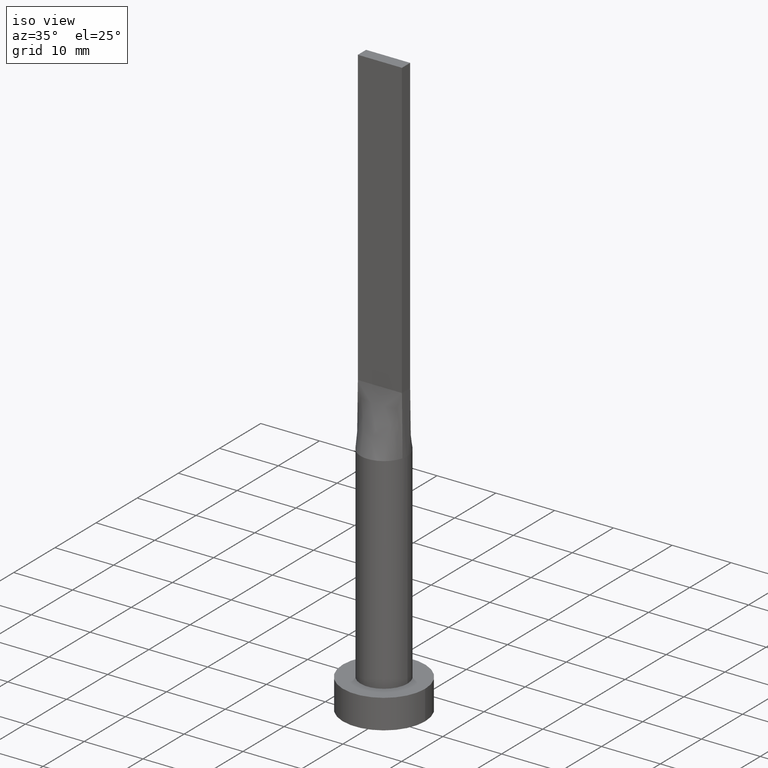
[diagram: clean part render]
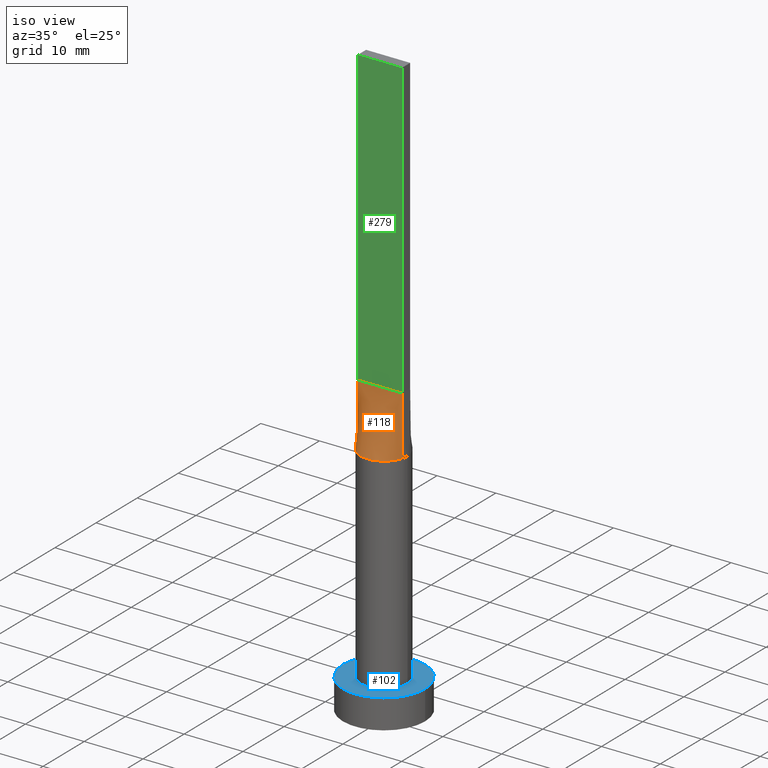
[diagram: same view with three faces highlighted in distinct colors, each labeled with its STEP entity id]
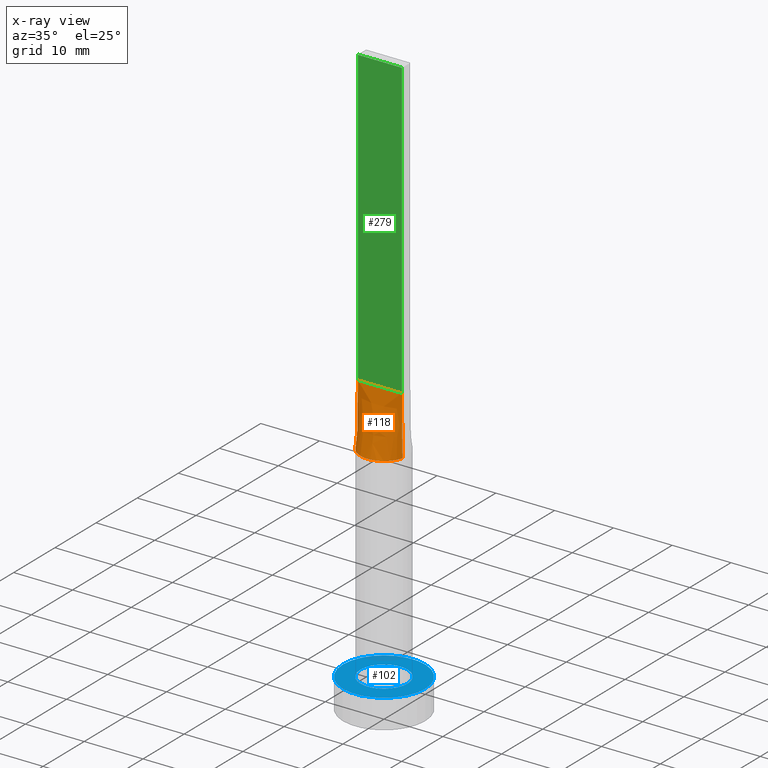
[diagram: x-ray of the same camera — body ghosted, the three highlighted faces saturated]
A machine part, iso view with three faces highlighted in distinct colors.
The next image is the same camera in x-ray (body ghosted, the three faces saturated) — at least one of them is partly hidden behind the body in this view.
Their STEP definitions:

[orange] entity #118 — the highlighted face is a freeform B-spline surface patch.
#11 = AXIS2_PLACEMENT_3D ( 'NONE', #215, #263, #35 ) ;
#13 = CARTESIAN_POINT ( 'NONE',  ( 1.250000000000001554, -0.9999999999999995559, 50.00000000000000000 ) ) ;
#15 = EDGE_CURVE ( 'NONE', #191, #323, #188, .T. ) ;
#19 = CARTESIAN_POINT ( 'NONE',  ( -3.267840578657194239, -2.338604872288696956, 40.00000000000000000 ) ) ;
#28 = CARTESIAN_POINT ( 'NONE',  ( -3.124999999999999112, -0.9999999999999991118, 50.00000000000000000 ) ) ;
#30 = VERTEX_POINT ( 'NONE', #101 ) ;
#35 = DIRECTION ( 'NONE',  ( 1.000000000000000000, 0.000000000000000000, 0.000000000000000000 ) ) ;
#38 = EDGE_CURVE ( 'NONE', #30, #573, #104, .T. ) ;
#55 = CARTESIAN_POINT ( 'NONE',  ( 3.807469879202492802, -1.015325301120664214, 45.00000000000000000 ) ) ;
#67 = CARTESIAN_POINT ( 'NONE',  ( -3.653499896451231521, -1.673258289339057514, 40.00000000000001421 ) ) ;
#70 = DIRECTION ( 'NONE',  ( 1.000000000000000000, -8.673617379884035472E-17, 0.000000000000000000 ) ) ;
#73 = EDGE_CURVE ( 'NONE', #30, #323, #459, .T. ) ;
#74 = CARTESIAN_POINT ( 'NONE',  ( -3.750000000000000000, -0.9999999999999991118, 50.00000000000000000 ) ) ;
#89 = CARTESIAN_POINT ( 'NONE',  ( -3.865220763612065902, -1.030726602927787949, 40.00000000000000000 ) ) ;
#98 = DIRECTION ( 'NONE',  ( -0.01149316269309399834, -0.003064843384825015424, -0.9999292544707033548 ) ) ;
#101 = CARTESIAN_POINT ( 'NONE',  ( -3.750000000000000000, -0.9999999999999991118, 50.00000000000000000 ) ) ;
#104 = LINE ( 'NONE', #378, #359 ) ;
#106 = CARTESIAN_POINT ( 'NONE',  ( -3.781952206537765981, -1.341853921743402900, 39.99999999999999289 ) ) ;
#109 = CARTESIAN_POINT ( 'NONE',  ( 3.437500000000000444, -0.9999999999999995559, 50.00000000000000000 ) ) ;
#118 = ADVANCED_FACE ( 'NONE', ( #502 ), #420, .T. ) ;
#120 = CARTESIAN_POINT ( 'NONE',  ( -2.499999999999998668, -0.9999999999999991118, 50.00000000000000000 ) ) ;
#130 = EDGE_LOOP ( 'NONE', ( #569, #504, #151, #544 ) ) ;
#138 = DIRECTION ( 'NONE',  ( -0.01149316269309399834, 0.003064843384825015424, 0.9999292544707033548 ) ) ;
#151 = ORIENTED_EDGE ( 'NONE', *, *, #73, .F. ) ;
#159 = CARTESIAN_POINT ( 'NONE',  ( 1.023074425454087555, -3.898373771260455811, 40.00000000000000000 ) ) ;
#173 = CARTESIAN_POINT ( 'NONE',  ( 3.865244591400370577, -1.030732999276501527, 40.00000000000000000 ) ) ;
#188 = LINE ( 'NONE', #55, #286 ) ;
#191 = VERTEX_POINT ( 'NONE', #173 ) ;
#193 = CARTESIAN_POINT ( 'NONE',  ( 1.940702937457743360, -3.532374760555930582, 40.00000000000000000 ) ) ;
#196 = CARTESIAN_POINT ( 'NONE',  ( -2.187499999999999112, -0.9999999999999993339, 50.00000000000000000 ) ) ;
#200 = CARTESIAN_POINT ( 'NONE',  ( -0.3124999999999982236, -0.9999999999999993339, 50.00000000000000711 ) ) ;
#204 = CARTESIAN_POINT ( 'NONE',  ( 3.864939758404985604, -1.030650602241328873, 40.00000000000000000 ) ) ;
#207 = CARTESIAN_POINT ( 'NONE',  ( 0.3125000000000018319, -0.9999999999999995559, 50.00000000000000711 ) ) ;
#215 = CARTESIAN_POINT ( 'NONE',  ( 0.000000000000000000, 0.000000000000000000, 40.00000000000000000 ) ) ;
#227 = EDGE_CURVE ( 'NONE', #573, #191, #520, .T. ) ;
#239 = CARTESIAN_POINT ( 'NONE',  ( -1.562499999999998890, -0.9999999999999993339, 50.00000000000000711 ) ) ;
#244 = CARTESIAN_POINT ( 'NONE',  ( 3.267840578657194239, -2.338604872288699177, 40.00000000000000711 ) ) ;
#263 = DIRECTION ( 'NONE',  ( 0.000000000000000000, 0.000000000000000000, 1.000000000000000000 ) ) ;
#284 = CARTESIAN_POINT ( 'NONE',  ( -1.249999999999998446, -0.9999999999999993339, 50.00000000000000711 ) ) ;
#286 = VECTOR ( 'NONE', #138, 1000.000000000000114 ) ;
#288 = CARTESIAN_POINT ( 'NONE',  ( 3.750000000000000000, -0.9999999999999997780, 50.00000000000000000 ) ) ;
#293 = CARTESIAN_POINT ( 'NONE',  ( -1.023074425454088887, -3.898373771260456255, 40.00000000000000000 ) ) ;
#301 = CARTESIAN_POINT ( 'NONE',  ( 0.6250000000000017764, -0.9999999999999995559, 50.00000000000000000 ) ) ;
#323 = VERTEX_POINT ( 'NONE', #578 ) ;
#333 = CARTESIAN_POINT ( 'NONE',  ( -3.864939758404985604, -1.030650602241328206, 40.00000000000000000 ) ) ;
#337 = CARTESIAN_POINT ( 'NONE',  ( 3.009488128496036641, -2.672487015486668671, 39.99999999999998579 ) ) ;
#340 = CARTESIAN_POINT ( 'NONE',  ( 0.5121855420560003092, -3.999999999999999112, 40.00000000000000000 ) ) ;
#359 = VECTOR ( 'NONE', #98, 1000.000000000000114 ) ;
#378 = CARTESIAN_POINT ( 'NONE',  ( -3.807469879202492802, -1.015325301120663548, 45.00000000000000000 ) ) ;
#381 = CARTESIAN_POINT ( 'NONE',  ( -0.6249999999999982236, -0.9999999999999993339, 50.00000000000000711 ) ) ;
#390 = CARTESIAN_POINT ( 'NONE',  ( 3.653499896451230633, -1.673258289339059068, 40.00000000000001421 ) ) ;
#392 = CARTESIAN_POINT ( 'NONE',  ( 3.781952206537765981, -1.341853921743404232, 40.00000000000000000 ) ) ;
#416 = CARTESIAN_POINT ( 'NONE',  ( -3.750000000000000000, -0.9999999999999991118, 50.00000000000000000 ) ) ;
#420 = B_SPLINE_SURFACE_WITH_KNOTS ( 'NONE', 3, 1, ( 
 ( #333, #74 ),
 ( #106, #557 ),
 ( #67, #28 ),
 ( #19, #120 ),
 ( #467, #196 ),
 ( #552, #239 ),
 ( #434, #284 ),
 ( #293, #381 ),
 ( #424, #200 ),
 ( #340, #207 ),
 ( #159, #301 ),
 ( #193, #13 ),
 ( #464, #549 ),
 ( #337, #476 ),
 ( #244, #507 ),
 ( #390, #518 ),
 ( #392, #109 ),
 ( #204, #288 ) ),
 .UNSPECIFIED., .F., .F., .F.,
 ( 4, 2, 2, 2, 2, 2, 2, 2, 4 ),
 ( 2, 2 ),
 ( 0.000000000000000000, 0.1250000000000000000, 0.2500000000000000000, 0.3750000000000000000, 0.5000000000000000000, 0.6250000000000000000, 0.7500000000000000000, 0.8750000000000000000, 1.000000000000000000 ),
 ( 0.000000000000000000, 1.000000000000000000 ),
 .UNSPECIFIED. ) ;
#424 = CARTESIAN_POINT ( 'NONE',  ( -0.5121855420560018635, -4.000000000000000000, 40.00000000000000000 ) ) ;
#434 = CARTESIAN_POINT ( 'NONE',  ( -1.940702937457744692, -3.532374760555929250, 40.00000000000000000 ) ) ;
#459 = LINE ( 'NONE', #416, #508 ) ;
#464 = CARTESIAN_POINT ( 'NONE',  ( 2.346407003458400364, -3.270103945996944095, 40.00000000000000000 ) ) ;
#467 = CARTESIAN_POINT ( 'NONE',  ( -3.009488128496037529, -2.672487015486668227, 40.00000000000000000 ) ) ;
#476 = CARTESIAN_POINT ( 'NONE',  ( 2.187500000000000888, -0.9999999999999995559, 50.00000000000000000 ) ) ;
#502 = FACE_OUTER_BOUND ( 'NONE', #130, .T. ) ;
#504 = ORIENTED_EDGE ( 'NONE', *, *, #15, .T. ) ;
#507 = CARTESIAN_POINT ( 'NONE',  ( 2.500000000000000888, -0.9999999999999995559, 50.00000000000000000 ) ) ;
#508 = VECTOR ( 'NONE', #70, 1000.000000000000000 ) ;
#518 = CARTESIAN_POINT ( 'NONE',  ( 3.125000000000000444, -0.9999999999999995559, 50.00000000000000000 ) ) ;
#520 = CIRCLE ( 'NONE', #11, 4.000000000000000000 ) ;
#544 = ORIENTED_EDGE ( 'NONE', *, *, #38, .T. ) ;
#549 = CARTESIAN_POINT ( 'NONE',  ( 1.562500000000001332, -0.9999999999999995559, 50.00000000000000000 ) ) ;
#552 = CARTESIAN_POINT ( 'NONE',  ( -2.346407003458402141, -3.270103945996943651, 40.00000000000000000 ) ) ;
#557 = CARTESIAN_POINT ( 'NONE',  ( -3.437499999999999556, -0.9999999999999991118, 50.00000000000000000 ) ) ;
#569 = ORIENTED_EDGE ( 'NONE', *, *, #227, .T. ) ;
#573 = VERTEX_POINT ( 'NONE', #89 ) ;
#578 = CARTESIAN_POINT ( 'NONE',  ( 3.750000000000000000, -0.9999999999999997780, 50.00000000000000000 ) ) ;

[blue] entity #102 — the highlighted planar face has unit normal (0, 0, 1).
#31 = CARTESIAN_POINT ( 'NONE',  ( 0.000000000000000000, 0.000000000000000000, 5.000000000000000000 ) ) ;
#33 = AXIS2_PLACEMENT_3D ( 'NONE', #31, #528, #86 ) ;
#34 = AXIS2_PLACEMENT_3D ( 'NONE', #209, #555, #338 ) ;
#61 = DIRECTION ( 'NONE',  ( 0.000000000000000000, 0.000000000000000000, 1.000000000000000000 ) ) ;
#77 = ORIENTED_EDGE ( 'NONE', *, *, #413, .F. ) ;
#78 = CIRCLE ( 'NONE', #475, 4.000000000000000000 ) ;
#86 = DIRECTION ( 'NONE',  ( 1.000000000000000000, 0.000000000000000000, 0.000000000000000000 ) ) ;
#96 = CARTESIAN_POINT ( 'NONE',  ( -7.000000000000000000, 0.000000000000000000, 5.000000000000000000 ) ) ;
#102 = ADVANCED_FACE ( 'NONE', ( #429, #346 ), #470, .T. ) ;
#143 = CIRCLE ( 'NONE', #34, 4.000000000000000000 ) ;
#154 = CARTESIAN_POINT ( 'NONE',  ( 0.000000000000000000, 0.000000000000000000, 5.000000000000000000 ) ) ;
#156 = DIRECTION ( 'NONE',  ( 1.000000000000000000, 0.000000000000000000, -0.000000000000000000 ) ) ;
#157 = CARTESIAN_POINT ( 'NONE',  ( -4.000000000000000000, 0.000000000000000000, 5.000000000000000000 ) ) ;
#158 = AXIS2_PLACEMENT_3D ( 'NONE', #268, #482, #306 ) ;
#201 = CARTESIAN_POINT ( 'NONE',  ( 0.000000000000000000, 0.000000000000000000, 5.000000000000000000 ) ) ;
#209 = CARTESIAN_POINT ( 'NONE',  ( 0.000000000000000000, 0.000000000000000000, 5.000000000000000000 ) ) ;
#211 = CARTESIAN_POINT ( 'NONE',  ( 7.000000000000000000, 8.572527594031473190E-16, 5.000000000000000000 ) ) ;
#213 = ORIENTED_EDGE ( 'NONE', *, *, #440, .F. ) ;
#219 = VERTEX_POINT ( 'NONE', #307 ) ;
#235 = EDGE_CURVE ( 'NONE', #242, #348, #287, .T. ) ;
#242 = VERTEX_POINT ( 'NONE', #211 ) ;
#254 = EDGE_LOOP ( 'NONE', ( #332, #362 ) ) ;
#268 = CARTESIAN_POINT ( 'NONE',  ( 0.000000000000000000, 0.000000000000000000, 5.000000000000000000 ) ) ;
#280 = CIRCLE ( 'NONE', #158, 7.000000000000000000 ) ;
#287 = CIRCLE ( 'NONE', #33, 7.000000000000000000 ) ;
#306 = DIRECTION ( 'NONE',  ( 1.000000000000000000, 0.000000000000000000, 0.000000000000000000 ) ) ;
#307 = CARTESIAN_POINT ( 'NONE',  ( 4.000000000000000000, 4.898587196589412829E-16, 5.000000000000000000 ) ) ;
#332 = ORIENTED_EDGE ( 'NONE', *, *, #513, .T. ) ;
#338 = DIRECTION ( 'NONE',  ( 1.000000000000000000, 0.000000000000000000, 0.000000000000000000 ) ) ;
#346 = FACE_OUTER_BOUND ( 'NONE', #254, .T. ) ;
#348 = VERTEX_POINT ( 'NONE', #96 ) ;
#362 = ORIENTED_EDGE ( 'NONE', *, *, #235, .T. ) ;
#382 = DIRECTION ( 'NONE',  ( 0.000000000000000000, 0.000000000000000000, 1.000000000000000000 ) ) ;
#401 = VERTEX_POINT ( 'NONE', #157 ) ;
#413 = EDGE_CURVE ( 'NONE', #401, #219, #143, .T. ) ;
#429 = FACE_BOUND ( 'NONE', #501, .T. ) ;
#440 = EDGE_CURVE ( 'NONE', #219, #401, #78, .T. ) ;
#470 = PLANE ( 'NONE',  #543 ) ;
#475 = AXIS2_PLACEMENT_3D ( 'NONE', #201, #382, #509 ) ;
#482 = DIRECTION ( 'NONE',  ( 0.000000000000000000, 0.000000000000000000, 1.000000000000000000 ) ) ;
#501 = EDGE_LOOP ( 'NONE', ( #77, #213 ) ) ;
#509 = DIRECTION ( 'NONE',  ( 1.000000000000000000, 0.000000000000000000, 0.000000000000000000 ) ) ;
#513 = EDGE_CURVE ( 'NONE', #348, #242, #280, .T. ) ;
#528 = DIRECTION ( 'NONE',  ( 0.000000000000000000, 0.000000000000000000, 1.000000000000000000 ) ) ;
#543 = AXIS2_PLACEMENT_3D ( 'NONE', #154, #61, #156 ) ;
#555 = DIRECTION ( 'NONE',  ( 0.000000000000000000, 0.000000000000000000, 1.000000000000000000 ) ) ;

[green] entity #279 — the highlighted planar face has unit normal (0, 1, -0).
#22 = EDGE_LOOP ( 'NONE', ( #206, #496, #236, #58 ) ) ;
#30 = VERTEX_POINT ( 'NONE', #101 ) ;
#57 = EDGE_CURVE ( 'NONE', #529, #30, #237, .T. ) ;
#58 = ORIENTED_EDGE ( 'NONE', *, *, #57, .T. ) ;
#70 = DIRECTION ( 'NONE',  ( 1.000000000000000000, -8.673617379884035472E-17, 0.000000000000000000 ) ) ;
#73 = EDGE_CURVE ( 'NONE', #30, #323, #459, .T. ) ;
#101 = CARTESIAN_POINT ( 'NONE',  ( -3.750000000000000000, -0.9999999999999991118, 50.00000000000000000 ) ) ;
#125 = DIRECTION ( 'NONE',  ( -0.000000000000000000, -0.000000000000000000, -1.000000000000000000 ) ) ;
#136 = CARTESIAN_POINT ( 'NONE',  ( 3.750000000000000000, -0.9999999999999997780, 100.0000000000000000 ) ) ;
#139 = DIRECTION ( 'NONE',  ( 8.673617379884035472E-17, 1.000000000000000000, -0.000000000000000000 ) ) ;
#140 = CARTESIAN_POINT ( 'NONE',  ( -3.750000000000000000, -0.9999999999999991118, 100.0000000000000000 ) ) ;
#206 = ORIENTED_EDGE ( 'NONE', *, *, #73, .T. ) ;
#221 = CARTESIAN_POINT ( 'NONE',  ( -3.750000000000000000, -0.9999999999999991118, 100.0000000000000000 ) ) ;
#226 = CARTESIAN_POINT ( 'NONE',  ( 3.750000000000000000, -0.9999999999999997780, 100.0000000000000000 ) ) ;
#236 = ORIENTED_EDGE ( 'NONE', *, *, #478, .F. ) ;
#237 = LINE ( 'NONE', #326, #530 ) ;
#262 = VECTOR ( 'NONE', #308, 1000.000000000000000 ) ;
#271 = VECTOR ( 'NONE', #125, 1000.000000000000000 ) ;
#279 = ADVANCED_FACE ( 'NONE', ( #449 ), #364, .F. ) ;
#290 = AXIS2_PLACEMENT_3D ( 'NONE', #221, #139, #316 ) ;
#308 = DIRECTION ( 'NONE',  ( 1.000000000000000000, -8.673617379884035472E-17, 0.000000000000000000 ) ) ;
#313 = VERTEX_POINT ( 'NONE', #226 ) ;
#316 = DIRECTION ( 'NONE',  ( -1.000000000000000000, 8.673617379884035472E-17, 0.000000000000000000 ) ) ;
#323 = VERTEX_POINT ( 'NONE', #578 ) ;
#326 = CARTESIAN_POINT ( 'NONE',  ( -3.750000000000000000, -0.9999999999999991118, 100.0000000000000000 ) ) ;
#364 = PLANE ( 'NONE',  #290 ) ;
#400 = LINE ( 'NONE', #140, #262 ) ;
#404 = LINE ( 'NONE', #136, #271 ) ;
#416 = CARTESIAN_POINT ( 'NONE',  ( -3.750000000000000000, -0.9999999999999991118, 50.00000000000000000 ) ) ;
#449 = FACE_OUTER_BOUND ( 'NONE', #22, .T. ) ;
#459 = LINE ( 'NONE', #416, #508 ) ;
#478 = EDGE_CURVE ( 'NONE', #529, #313, #400, .T. ) ;
#494 = EDGE_CURVE ( 'NONE', #313, #323, #404, .T. ) ;
#496 = ORIENTED_EDGE ( 'NONE', *, *, #494, .F. ) ;
#498 = DIRECTION ( 'NONE',  ( -0.000000000000000000, -0.000000000000000000, -1.000000000000000000 ) ) ;
#508 = VECTOR ( 'NONE', #70, 1000.000000000000000 ) ;
#529 = VERTEX_POINT ( 'NONE', #535 ) ;
#530 = VECTOR ( 'NONE', #498, 1000.000000000000000 ) ;
#535 = CARTESIAN_POINT ( 'NONE',  ( -3.750000000000000000, -0.9999999999999991118, 100.0000000000000000 ) ) ;
#578 = CARTESIAN_POINT ( 'NONE',  ( 3.750000000000000000, -0.9999999999999997780, 50.00000000000000000 ) ) ;